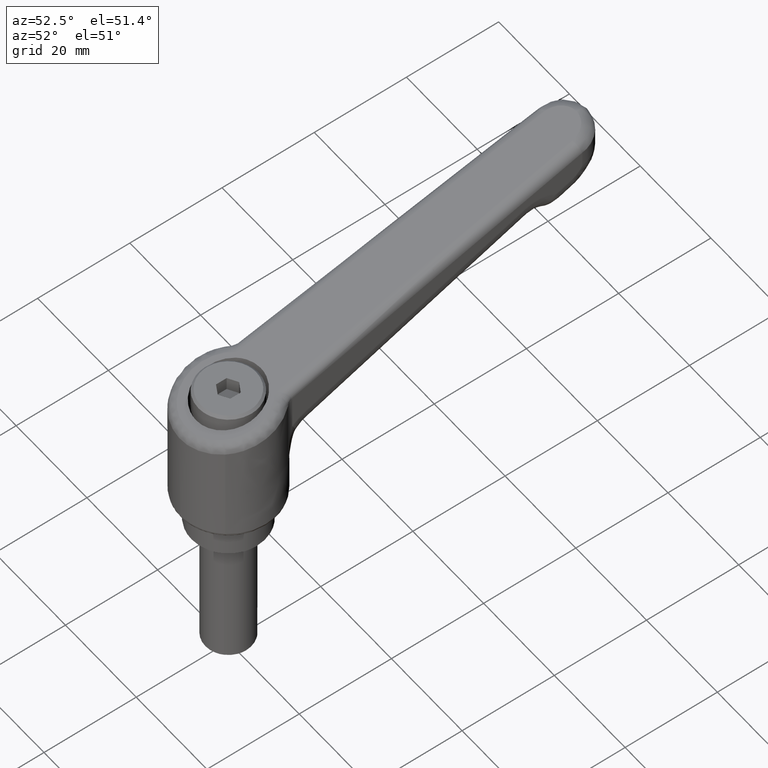
[diagram: clean part render]
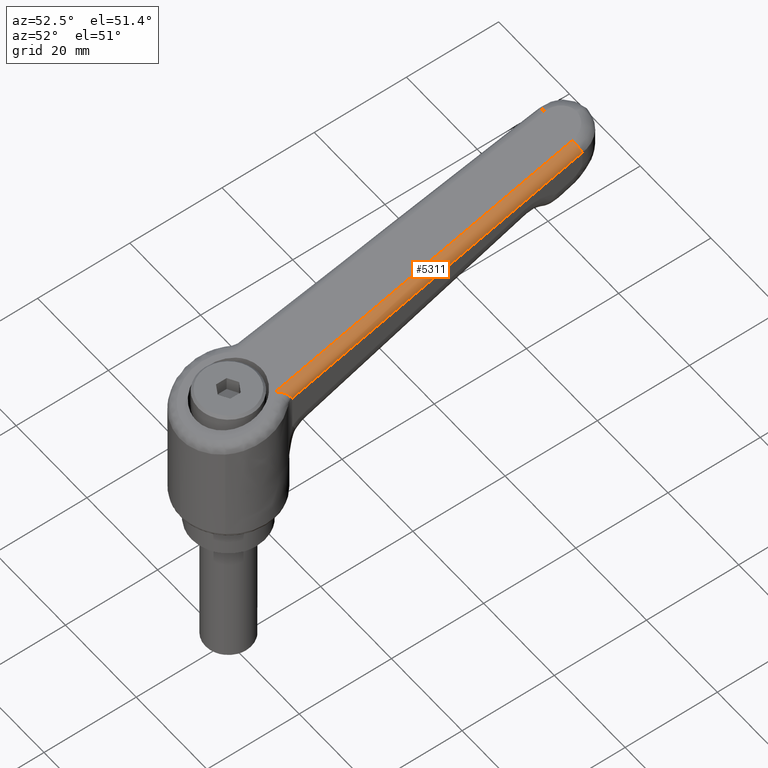
[diagram: same view with one face highlighted and labeled with its STEP entity id]
A machine part, auxiliary view. The second image highlights one B-rep face of the part: STEP entity #5311.
In plain terms, the highlighted face is a freeform B-spline surface patch.
Its self-contained STEP definition (entity closure, byte-faithful):
#4488=CARTESIAN_POINT('',(8.012310873974581,-7.484620097367070,26.550085542636701));
#4489=VERTEX_POINT('',#4488);
#4580=CARTESIAN_POINT('',(5.940270675266100,-5.519973294428710,28.072980452360650));
#4581=VERTEX_POINT('',#4580);
#4582=CARTESIAN_POINT('',(5.940270675266100,-5.519973294428710,28.072980452360650));
#4583=CARTESIAN_POINT('',(5.964480614774279,-5.547432011839613,28.079545863633360));
#4584=CARTESIAN_POINT('',(5.989265997644733,-5.575478822556796,28.085646383558871));
#4585=CARTESIAN_POINT('',(6.038516155136614,-5.631213356548575,28.096495456946311));
#4586=CARTESIAN_POINT('',(6.063177297555369,-5.659099459909704,28.101299809255352));
#4587=CARTESIAN_POINT('',(6.137280046364706,-5.742805844437203,28.113834462730111));
#4588=CARTESIAN_POINT('',(6.236400805728932,-5.854542999162270,28.125544736099268));
#4589=CARTESIAN_POINT('',(6.336298588807207,-5.966438066856086,28.126912716068549));
#4590=CARTESIAN_POINT('',(6.436675591760115,-6.078354399790436,28.122829516031480));
#4591=CARTESIAN_POINT('',(6.487147811663362,-6.134369565379744,28.118035300121900));
#4592=CARTESIAN_POINT('',(6.637506585705856,-6.300205416661115,28.095263813924849));
#4593=CARTESIAN_POINT('',(6.736954891199125,-6.408531870184022,28.068977035153210));
#4594=CARTESIAN_POINT('',(6.885342057876265,-6.566842114411010,28.011153382002099));
#4595=CARTESIAN_POINT('',(6.934758550251050,-6.618999503856220,27.988751941200920));
#4596=CARTESIAN_POINT('',(7.033042439528751,-6.721321435379911,27.937412480050320));
#4597=CARTESIAN_POINT('',(7.081414836673228,-6.770971804287339,27.908742853052569));
#4598=CARTESIAN_POINT('',(7.224287841670980,-6.915104772998762,27.813444946194931));
#4599=CARTESIAN_POINT('',(7.316569309393523,-7.004842122085285,27.737656338635571));
#4600=CARTESIAN_POINT('',(7.428105372921928,-7.107278983547890,27.625106711646961));
#4601=CARTESIAN_POINT('',(7.450184111504109,-7.127238494884410,27.601723402679461));
#4602=CARTESIAN_POINT('',(7.493405659117809,-7.165635710814681,27.553690359204179));
#4603=CARTESIAN_POINT('',(7.514615506485982,-7.184135410504219,27.528974407131280));
#4604=CARTESIAN_POINT('',(7.577044525621799,-7.237497692518466,27.452706481559691));
#4605=CARTESIAN_POINT('',(7.617067206689870,-7.270230299298772,27.399041363525900));
#4606=CARTESIAN_POINT('',(7.693841030512747,-7.329649397719105,27.285803436918680));
#4607=CARTESIAN_POINT('',(7.730593603946318,-7.356338908162788,27.226233430740340));
#4608=CARTESIAN_POINT('',(7.783102198798400,-7.391379817879831,27.132058676845709));
#4609=CARTESIAN_POINT('',(7.800105829996444,-7.402179796499143,27.099957161307181));
#4610=CARTESIAN_POINT('',(7.832689216794131,-7.421735625142204,27.035147266450998));
#4611=CARTESIAN_POINT('',(7.848333675848410,-7.430535310697348,27.002324726392668));
#4612=CARTESIAN_POINT('',(7.923350869016922,-7.469653137180289,26.836138127920091));
#4613=CARTESIAN_POINT('',(7.973256513195769,-7.485525234275999,26.696643363037150));
#4614=CARTESIAN_POINT('',(8.012310873974581,-7.484620097367070,26.550085542636701));
#4615=B_SPLINE_CURVE_WITH_KNOTS('',3,(#4582,#4583,#4584,#4585,#4586,#4587,#4588,#4589,#4590,#4591,#4592,#4593,#4594,#4595,#4596,#4597,#4598,#4599,#4600,#4601,#4602,#4603,#4604,#4605,#4606,#4607,#4608,#4609,#4610,#4611,#4612,#4613,#4614),.UNSPECIFIED.,.F.,.U.,(4,2,2,1,2,2,2,2,2,2,2,2,2,2,2,2,4),(0.0,0.031250000000000,0.062500000000000,0.124999999999998,0.187499999999997,0.249999999999996,0.374999999999993,0.437499999999992,0.499999999999991,0.624999999999988,0.656249999999988,0.687499999999988,0.749999999999990,0.812499999999992,0.843749999999994,0.874999999999995,1.0),.UNSPECIFIED.);
#4616=EDGE_CURVE('',#4581,#4489,#4615,.T.);
#5268=CARTESIAN_POINT('',(4.873917458269680,-7.557280377013173,25.680912646936669));
#5269=CARTESIAN_POINT('',(73.825326263893544,-5.959239498040288,44.379611026211457));
#5270=CARTESIAN_POINT('',(4.313314711943701,-7.588994246662201,27.750844383067999));
#5271=CARTESIAN_POINT('',(73.264723517567560,-5.990953367689299,46.449542762342787));
#5272=CARTESIAN_POINT('',(4.297965351809046,-5.448038072935896,27.624473261815279));
#5273=CARTESIAN_POINT('',(73.249374157432925,-3.849997193962995,46.323171641090063));
#5281=(BOUNDED_SURFACE()B_SPLINE_SURFACE(1,2,((#5268,#5270,#5272),(#5269,#5271,#5273)),.UNSPECIFIED.,.F.,.F.,.U.)B_SPLINE_SURFACE_WITH_KNOTS((2,2),(3,3),(0.0,71.459721745961403),(0.0,3.478498999687471),.UNSPECIFIED.)GEOMETRIC_REPRESENTATION_ITEM()RATIONAL_B_SPLINE_SURFACE(((1.0,0.681998360062499,1.0),(1.0,0.681998360062499,1.0)))REPRESENTATION_ITEM('')SURFACE());
#5282=CARTESIAN_POINT('',(71.569214214229888,-3.998934980117811,45.870670759820300));
#5283=VERTEX_POINT('',#5282);
#5284=CARTESIAN_POINT('',(5.940270675266100,-5.519973294428710,28.072980452360650));
#5285=CARTESIAN_POINT('',(71.569214214229888,-3.998934980117811,45.870670759820300));
#5286=QUASI_UNIFORM_CURVE('',1,(#5284,#5285),.UNSPECIFIED.,.F.,.U.);
#5287=EDGE_CURVE('',#4581,#5283,#5286,.T.);
#5288=ORIENTED_EDGE('',*,*,#5287,.F.);
#5289=ORIENTED_EDGE('',*,*,#4616,.T.);
#5290=CARTESIAN_POINT('',(72.139020671948700,-5.998398053955600,43.940390183805903));
#5291=VERTEX_POINT('',#5290);
#5292=CARTESIAN_POINT('',(72.139020671948700,-5.998398053955600,43.940390183805903));
#5293=CARTESIAN_POINT('',(8.012310873974581,-7.484620097367070,26.550085542636701));
#5294=QUASI_UNIFORM_CURVE('',1,(#5292,#5293),.UNSPECIFIED.,.F.,.U.);
#5295=EDGE_CURVE('',#5291,#4489,#5294,.T.);
#5296=ORIENTED_EDGE('',*,*,#5295,.F.);
#5297=CARTESIAN_POINT('',(72.139020671948700,-5.998398053955600,43.940390183805903));
#5298=CARTESIAN_POINT('',(72.083162135786125,-5.999801170741575,44.146488326150163));
#5299=CARTESIAN_POINT('',(71.965488535271888,-5.930748198480779,44.574508014998052));
#5300=CARTESIAN_POINT('',(71.824619469901677,-5.657988377037954,45.070651595770002));
#5301=CARTESIAN_POINT('',(71.723150706120151,-5.317603631459352,45.415727244540513));
#5302=CARTESIAN_POINT('',(71.656271049810144,-4.994381538384173,45.634722402511187));
#5303=CARTESIAN_POINT('',(71.595865403096866,-4.557201544748446,45.820105516828477));
#5304=CARTESIAN_POINT('',(71.573794985048451,-4.212428306717349,45.872024889475803));
#5305=CARTESIAN_POINT('',(71.569214214229888,-3.998934980117811,45.870670759820300));
#5306=B_SPLINE_CURVE_WITH_KNOTS('',3,(#5297,#5298,#5299,#5300,#5301,#5302,#5303,#5304,#5305),.UNSPECIFIED.,.F.,.U.,(4,1,1,1,1,1,4),(0.000000111305433,0.640610828309686,1.330536557933022,1.724707295530237,2.118948865641465,2.513192595319157,3.153801250749607),.UNSPECIFIED.);
#5307=EDGE_CURVE('',#5291,#5283,#5306,.T.);
#5308=ORIENTED_EDGE('',*,*,#5307,.T.);
#5309=EDGE_LOOP('',(#5288,#5289,#5296,#5308));
#5310=FACE_OUTER_BOUND('',#5309,.T.);
#5311=ADVANCED_FACE('',(#5310),#5281,.T.);